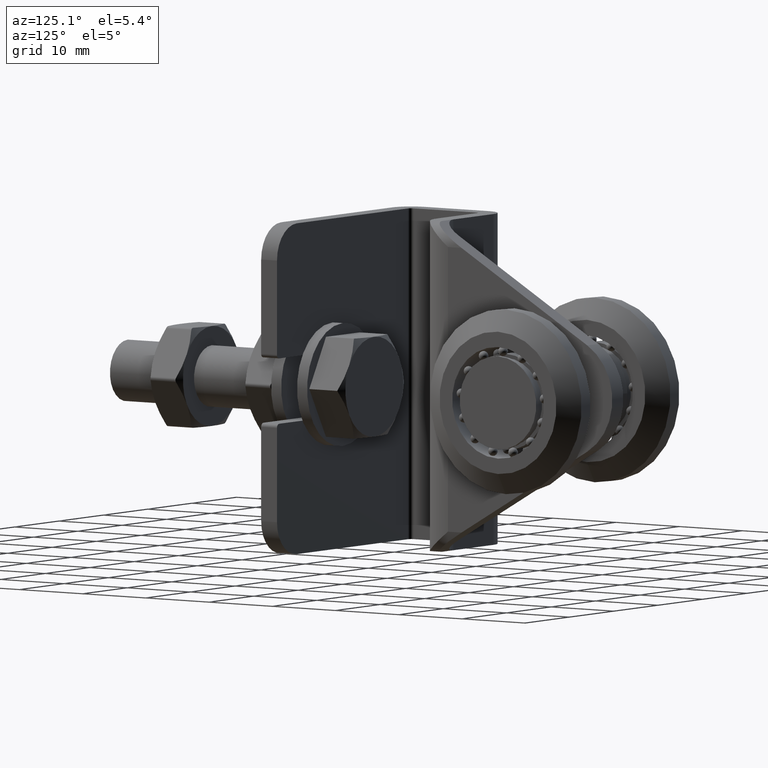
[diagram: clean part render]
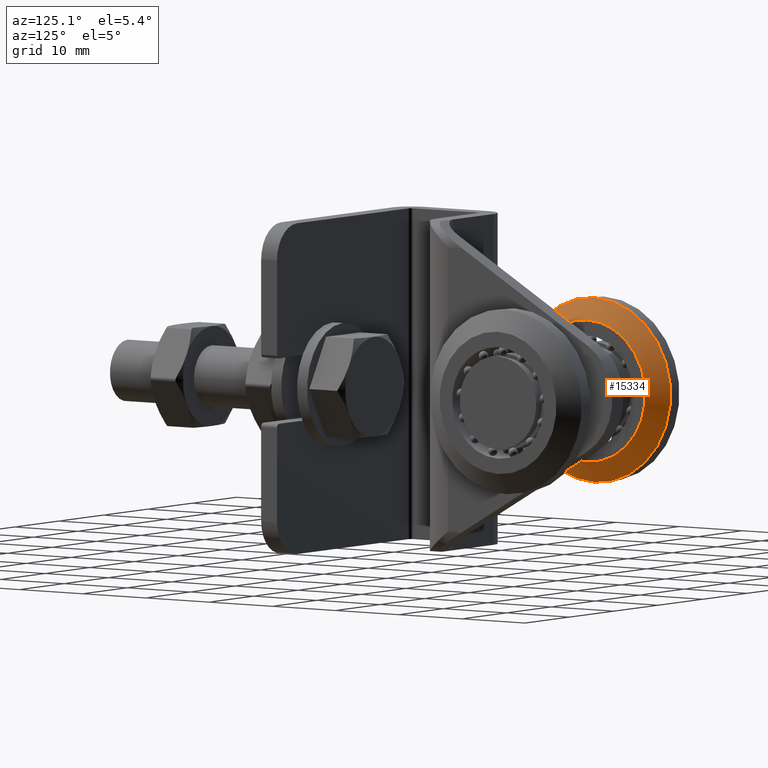
[diagram: same view with one face highlighted and labeled with its STEP entity id]
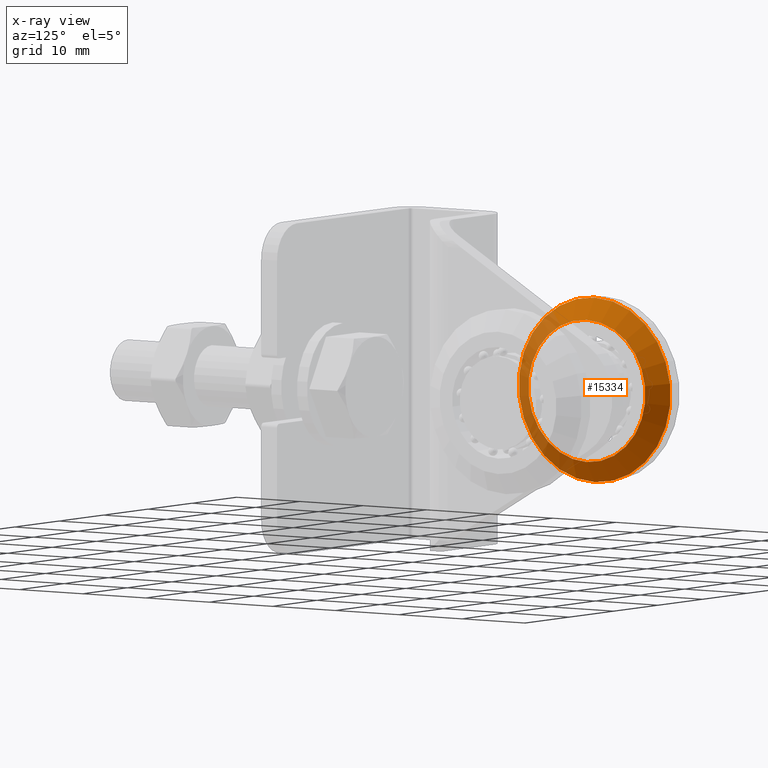
[diagram: x-ray of the same camera — body ghosted, the highlighted face saturated]
A machine part, auxiliary view. The second image highlights one B-rep face of the part: STEP entity #15334.
The next image is the same camera in x-ray: the body ghosted, the highlighted face saturated — about 23% of this face is hidden behind the body in this view.
In plain terms, the highlighted conical surface has half-angle 57.529 deg.
Its self-contained STEP definition (entity closure, byte-faithful):
#860 = CONICAL_SURFACE ( 'NONE', #14873, 9.250000000000005329, 1.004067109271390645 ) ;
#1531 = CARTESIAN_POINT ( 'NONE',  ( -7.250000000000000888, 12.50000000000000000, -3.168773592793776297E-15 ) ) ;
#2333 = DIRECTION ( 'NONE',  ( 1.000000000000000000, -0.000000000000000000, 1.836970198721029688E-16 ) ) ;
#2341 = AXIS2_PLACEMENT_3D ( 'NONE', #8385, #10844, #14738 ) ;
#2383 = CARTESIAN_POINT ( 'NONE',  ( -9.000000000000000000, 12.50000000000000000, -3.490243377569956456E-15 ) ) ;
#2878 = VERTEX_POINT ( 'NONE', #16495 ) ;
#3473 = VERTEX_POINT ( 'NONE', #7336 ) ;
#3531 = FACE_OUTER_BOUND ( 'NONE', #3746, .T. ) ;
#3642 = ORIENTED_EDGE ( 'NONE', *, *, #6853, .F. ) ;
#3746 = EDGE_LOOP ( 'NONE', ( #7827 ) ) ;
#4046 = DIRECTION ( 'NONE',  ( -1.000000000000000000, 0.000000000000000000, -1.836970198721029688E-16 ) ) ;
#4135 = FACE_BOUND ( 'NONE', #8303, .T. ) ;
#4509 = CIRCLE ( 'NONE', #2341, 9.250000000000005329 ) ;
#5383 = DIRECTION ( 'NONE',  ( -1.875376730785736240E-16, 0.000000000000000000, 1.000000000000000000 ) ) ;
#6853 = EDGE_CURVE ( 'NONE', #2878, #2878, #4509, .T. ) ;
#7336 = CARTESIAN_POINT ( 'NONE',  ( -8.999999999999998224, 12.50000000000000000, -12.00000000000000711 ) ) ;
#7827 = ORIENTED_EDGE ( 'NONE', *, *, #11497, .T. ) ;
#8303 = EDGE_LOOP ( 'NONE', ( #3642 ) ) ;
#8385 = CARTESIAN_POINT ( 'NONE',  ( -7.250000000000000888, 12.50000000000000000, -3.168773592793776297E-15 ) ) ;
#8952 = DIRECTION ( 'NONE',  ( 1.445602896647338917E-16, 0.000000000000000000, -1.000000000000000000 ) ) ;
#10844 = DIRECTION ( 'NONE',  ( 1.000000000000000000, -0.000000000000000000, 1.836970198721029688E-16 ) ) ;
#11497 = EDGE_CURVE ( 'NONE', #3473, #3473, #15905, .T. ) ;
#14639 = AXIS2_PLACEMENT_3D ( 'NONE', #2383, #2333, #8952 ) ;
#14738 = DIRECTION ( 'NONE',  ( 1.875376730785736240E-16, 0.000000000000000000, -1.000000000000000000 ) ) ;
#14873 = AXIS2_PLACEMENT_3D ( 'NONE', #1531, #4046, #5383 ) ;
#15334 = ADVANCED_FACE ( 'NONE', ( #3531, #4135 ), #860, .T. ) ;
#15905 = CIRCLE ( 'NONE', #14639, 12.00000000000000355 ) ;
#16495 = CARTESIAN_POINT ( 'NONE',  ( -7.249999999999999112, 12.50000000000000000, -9.250000000000008882 ) ) ;